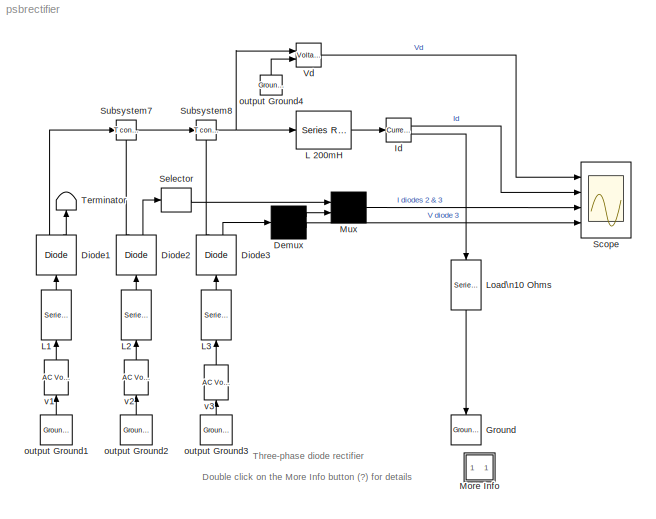
MODEL psbrectifier
KIND model
BLOCK [Demux] Demux
  Outputs = 2
  Ports = [1, 2]
BLOCK [Reference] Diode1  REF=powerlib2/Power\nElectronics/Diode
  Cs = 0.1e-6
  IC = 0
  Lon = 0
  PSBOutputType = 10
  Ports = [1, 2]
  Ron = 1e-2
  Rs = 1000
  SourceBlock = powerlib2/Power\nElectronics/Diode
  SourceType = Diode
  Tag = PoWeRsYsTeMbLoCk
  Vf = 0.8
BLOCK [Reference] Diode2  REF=powerlib2/Power\nElectronics/Diode
  Cs = 0.1e-6
  IC = 0
  Lon = 0
  PSBOutputType = 10
  Ports = [1, 2]
  Ron = 1e-2
  Rs = 1000
  SourceBlock = powerlib2/Power\nElectronics/Diode
  SourceType = Diode
  Tag = PoWeRsYsTeMbLoCk
  Vf = 0.8
BLOCK [Reference] Diode3  REF=powerlib2/Power\nElectronics/Diode
  Cs = 0.1e-6
  IC = 0
  Lon = 0
  PSBOutputType = 10
  Ports = [1, 2]
  Ron = 1e-2
  Rs = 1000
  SourceBlock = powerlib2/Power\nElectronics/Diode
  SourceType = Diode
  Tag = PoWeRsYsTeMbLoCk
  Vf = 0.8
BLOCK [Reference] Ground  REF=powerlib2/Connectors/Ground (input)
  Ports = [1]
  SourceBlock = powerlib2/Connectors/Ground (input)
  SourceType = Ground
  Tag = PoWeRsYsTeMbLoCk
BLOCK [Reference] Id  REF=powerlib2/Measurements/Current Measurement
  OutputType = Magnitude
  PSBOutputType = 01
  PSBequivalent = 0
  PhasorSimulation = off
  Ports = [1, 2]
  SourceBlock = powerlib2/Measurements/Current Measurement
  SourceType = Current Measurement
  Tag = PoWeRsYsTeMmEaSuReMeNt
BLOCK [Reference] L 200mH  REF=powerlib2/Elements/Series RLC Branch
  PSBOutputType = 1
  Ports = [1, 1]
  SourceBlock = powerlib2/Elements/Series RLC Branch
  SourceType = Series RLC Branch
  Tag = PoWeRsYsTeMbLoCk
  a = 0
  b = 200e-03
  c = inf
  mesure = None
BLOCK [Reference] L1  REF=powerlib2/Elements/Series RLC Branch
  PSBOutputType = 1
  Ports = [1, 1]
  SourceBlock = powerlib2/Elements/Series RLC Branch
  SourceType = Series RLC Branch
  Tag = PoWeRsYsTeMbLoCk
  a = 0
  b = 5e-03
  c = inf
  mesure = None
BLOCK [Reference] L2  REF=powerlib2/Elements/Series RLC Branch
  PSBOutputType = 1
  Ports = [1, 1]
  SourceBlock = powerlib2/Elements/Series RLC Branch
  SourceType = Series RLC Branch
  Tag = PoWeRsYsTeMbLoCk
  a = 0
  b = 5e-03
  c = inf
  mesure = None
BLOCK [Reference] L3  REF=powerlib2/Elements/Series RLC Branch
  PSBOutputType = 1
  Ports = [1, 1]
  SourceBlock = powerlib2/Elements/Series RLC Branch
  SourceType = Series RLC Branch
  Tag = PoWeRsYsTeMbLoCk
  a = 0
  b = 5e-03
  c = inf
  mesure = None
BLOCK [Reference] Load\n10 Ohms  REF=powerlib2/Elements/Series RLC Branch
  PSBOutputType = 1
  Ports = [1, 1]
  SourceBlock = powerlib2/Elements/Series RLC Branch
  SourceType = Series RLC Branch
  Tag = PoWeRsYsTeMbLoCk
  a = 10
  b = 0
  c = inf
  mesure = None
BLOCK [SubSystem] More Info
  MaskDisplay = disp('?')
  MaskIconFrame = on
  MaskIconOpaque = on
  MaskIconRotate = none
  MaskIconUnits = autoscale
  MinAlgLoopOccurrences = off
  Ports = []
  RTWSystemCode = Auto
  TreatAsAtomicUnit = off
BLOCK [Mux] Mux
  Inputs = 2
  Ports = [2, 1]
BLOCK [Scope] Scope
  DataFormat = Structure
  LimitDataPoints = off
  NumInputPorts = 4
  Ports = [4]
  TimeRange = 0.1
  YMax = 200~20~20~500
  YMin = 0~0~0~-500
  ZoomMode = yonly
BLOCK [Selector] Selector
  Elements = 1
  InputPortWidth = 2
  Ports = [1, 1]
BLOCK [Reference] Subsystem7  REF=powerlib2/Connectors/T connector
  PSBOutputType = 1
  Ports = [1, 1, 1]
  SourceBlock = powerlib2/Connectors/T connector
  SourceType = Bus Bar
  Tag = PoWeRsYsTeMbLoCk
BLOCK [Reference] Subsystem8  REF=powerlib2/Connectors/T connector
  PSBOutputType = 1
  Ports = [1, 1, 1]
  SourceBlock = powerlib2/Connectors/T connector
  SourceType = Bus Bar
  Tag = PoWeRsYsTeMbLoCk
BLOCK [Terminator] Terminator
BLOCK [Reference] Vd  REF=powerlib2/Measurements/Voltage Measurement
  OutputType = Magnitude
  PSBOutputType = 0
  PSBequivalent = 0
  PhasorSimulation = off
  Ports = [2, 1]
  SourceBlock = powerlib2/Measurements/Voltage Measurement
  SourceType = Voltage Measurement
  Tag = PoWeRsYsTeMmEaSuReMeNt
BLOCK [Reference] output Ground1  REF=powerlib2/Connectors/Ground (output)
  PSBOutputType = 1
  Ports = [0, 1]
  SourceBlock = powerlib2/Connectors/Ground (output)
  SourceType = Ground
  Tag = PoWeRsYsTeMbLoCk
BLOCK [Reference] output Ground2  REF=powerlib2/Connectors/Ground (output)
  PSBOutputType = 1
  Ports = [0, 1]
  SourceBlock = powerlib2/Connectors/Ground (output)
  SourceType = Ground
  Tag = PoWeRsYsTeMbLoCk
BLOCK [Reference] output Ground3  REF=powerlib2/Connectors/Ground (output)
  PSBOutputType = 1
  Ports = [0, 1]
  SourceBlock = powerlib2/Connectors/Ground (output)
  SourceType = Ground
  Tag = PoWeRsYsTeMbLoCk
BLOCK [Reference] output Ground4  REF=powerlib2/Connectors/Ground (output)
  PSBOutputType = 1
  Ports = [0, 1]
  SourceBlock = powerlib2/Connectors/Ground (output)
  SourceType = Ground
  Tag = PoWeRsYsTeMbLoCk
BLOCK [Reference] v1  REF=powerlib2/Electrical\nSources/AC Voltage Source
  A = 120*sqrt(2)
  F = 60
  P = 0
  PSBOutputType = 1
  Ports = [1, 1]
  SourceBlock = powerlib2/Electrical\nSources/AC Voltage Source
  SourceType = AC Voltage Source
  Tag = PoWeRsYsTeMbLoCk
  mesure = None
  stime = 0
BLOCK [Reference] v2  REF=powerlib2/Electrical\nSources/AC Voltage Source
  A = 120*sqrt(2)
  F = 60
  P = -120
  PSBOutputType = 1
  Ports = [1, 1]
  SourceBlock = powerlib2/Electrical\nSources/AC Voltage Source
  SourceType = AC Voltage Source
  Tag = PoWeRsYsTeMbLoCk
  mesure = None
  stime = 0
BLOCK [Reference] v3  REF=powerlib2/Electrical\nSources/AC Voltage Source
  A = 120*sqrt(2)
  F = 60
  P = 120
  PSBOutputType = 1
  Ports = [1, 1]
  SourceBlock = powerlib2/Electrical\nSources/AC Voltage Source
  SourceType = AC Voltage Source
  Tag = PoWeRsYsTeMbLoCk
  mesure = None
  stime = 0
ANNOTATION (root): Double click on the More Info button (?) for details
ANNOTATION (root): Three-phase diode rectifier
ANNOTATION More Info: 1. Simulation with continuous integration method
ANNOTATION More Info: 2. Simulation with discretized system
ANNOTATION More Info: A 10 ohm load is fed in DC through a three-phase rectifier from an inductive\nsource (5 mH; 120 V rms). The rectified current is filtered by a 200mH inductance.\n\nDiodes are connected in parallel with RC snubbers (1000 ohms-0.1 uF) \nThe measurement outputs of Diode2 and Diode3 is used to observe the diode voltage and current.
ANNOTATION More Info: Check the simulation parameters in the Simulation/Parameters menu\nThe following intregation algorithm should be used: Variable time step ode23tb with default parameters.\nStart the simulation and observe waveforms on the four trace Scope block.\n\nAfter a transient period the load current Id stabilizes at 12.7 A. Note that most of the third harmonic which\ncan be seen in the rectified voltage Vd ...<+444ch>
ANNOTATION More Info: Demonstration
ANNOTATION More Info: Description
ANNOTATION More Info: Drag the 'Discrete system' block from the powerlib library into your psbrectifier system.\nKeep the default sample time of 50 microseconds. Restart the simulation.\n\nYour system is now discretized and simulated at fixed time steps.\nCompare waveforms with those obtained with the continuous integration algorithm (ode23tb).
ANNOTATION More Info: G. Sybille (Hydro-Quebec)
ANNOTATION More Info: This demonstration illustrates use of the Diode block \nto simulate a three-phase rectifier and\ncompares continuous vs discrete simulations
LINE Demux:1 -> Mux:2
LINE Demux:2 -> Scope:4
LINE Diode1:1 -> Subsystem7:1
LINE Diode1:2 -> Terminator:1
LINE Diode2:1 -> Subsystem7:enable
LINE Diode2:2 -> Selector:1
LINE Diode3:1 -> Subsystem8:enable
LINE Diode3:2 -> Demux:1
LINE Id:1 -> Scope:2
LINE Id:2 -> Load\n10 Ohms:1
LINE L 200mH:1 -> Id:1
LINE L1:1 -> Diode1:1
LINE L2:1 -> Diode2:1
LINE L3:1 -> Diode3:1
LINE Load\n10 Ohms:1 -> Ground:1
LINE Mux:1 -> Scope:3
LINE Selector:1 -> Mux:1
LINE Subsystem7:1 -> Subsystem8:1
NET Subsystem8:1 -> L 200mH:1, Vd:1
LINE Vd:1 -> Scope:1
LINE output Ground1:1 -> v1:1
LINE output Ground2:1 -> v2:1
LINE output Ground3:1 -> v3:1
LINE output Ground4:1 -> Vd:2
LINE v1:1 -> L1:1
LINE v2:1 -> L2:1
LINE v3:1 -> L3:1
note: NET lines group one-source signal fan-out (src -> all destinations, sorted); 1:1 wires keep LINE
